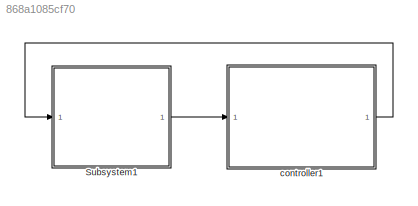
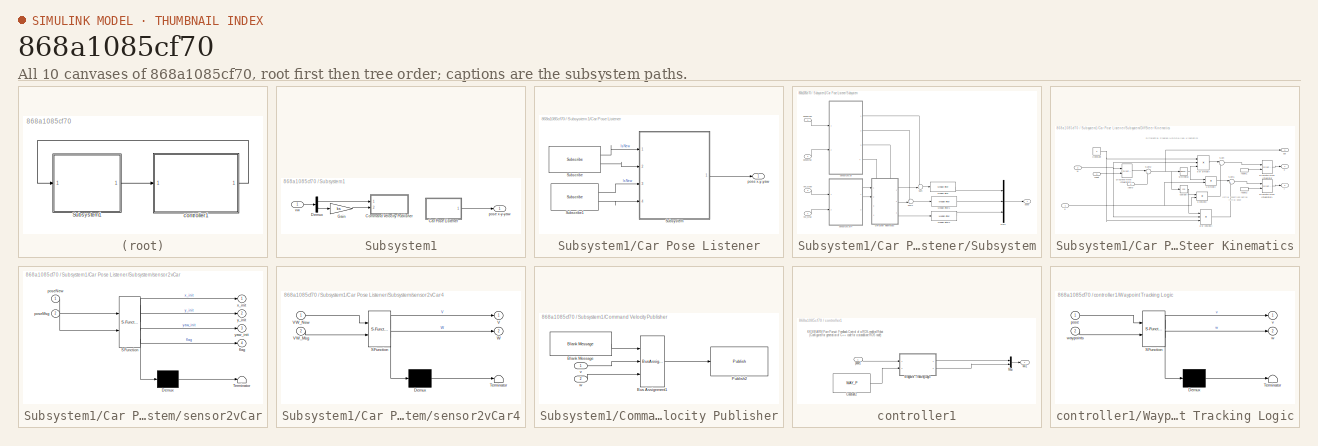
[diagram: thumbnail index - all 10 canvases of the model, root first then tree order]
MODEL slx_868a1085cf70
KIND model
CONFIG AbsTol = auto
CONFIG EnableMultiTasking = on
CONFIG FixedStep = sampleTime
CONFIG InitFcn = sampleTime = 0.05;\nnMedianSize=3;\n% Robot parameters\nwheelRadius = 0.0303; \nrobotRadius = 0.06;   %小车在仿真中显示的圆形的半径大小\nTrackwidth = 0.0847;  %定义向量场直方图算法中小车的宽度\n\n% Lidar parameters\nsensorOffset = [0,0];\nscanAngles = linspace(-pi/2,pi/2,9)';\nmaxRange = 5;\n\n%%%%%%\nks=1;\n\n%初始位置\nx_1_0=1;\ny_1_0=1;\nyaw_1_0=pi/4;\n\nx_2_0=0;\ny_2_0=0.3;\nyaw_2_0=0;\n\nx_3_0=0;\ny_3_0=0.6;\nyaw_3_0=0;\n\nx_4_0=0;\ny_4_0=0.9;\nyaw_4_0=0;\n\n...<+107ch>
CONFIG MaxStep = auto
CONFIG MinStep = auto
CONFIG RelTol = 1e-3
CONFIG SampleTimeConstraint = Unconstrained
CONFIG SolverName = FixedStepDiscrete
CONFIG StartTime = 0.0
CONFIG StopTime = Inf
BLOCK [SubSystem] Subsystem1
  Ports = [1, 1]
  RequestExecContextInheritance = off
BLOCK [SubSystem] Subsystem1/Car Pose Listener
  Ports = [0, 1]
  RequestExecContextInheritance = off
BLOCK [Reference] Subsystem1/Car Pose Listener/Subscribe  REF=robotlib/Subscribe
  Ports = [0, 2]
  SourceBlock = robotlib/Subscribe
  SourceProductBaseCode = RR
  SourceType = ROS Subscribe
BLOCK [Reference] Subsystem1/Car Pose Listener/Subscribe1  REF=robotlib/Subscribe
  Ports = [0, 2]
  SourceBlock = robotlib/Subscribe
  SourceProductBaseCode = RR
  SourceType = ROS Subscribe
BLOCK [SubSystem] Subsystem1/Car Pose Listener/Subsystem
  Ports = [4, 1]
  RequestExecContextInheritance = off
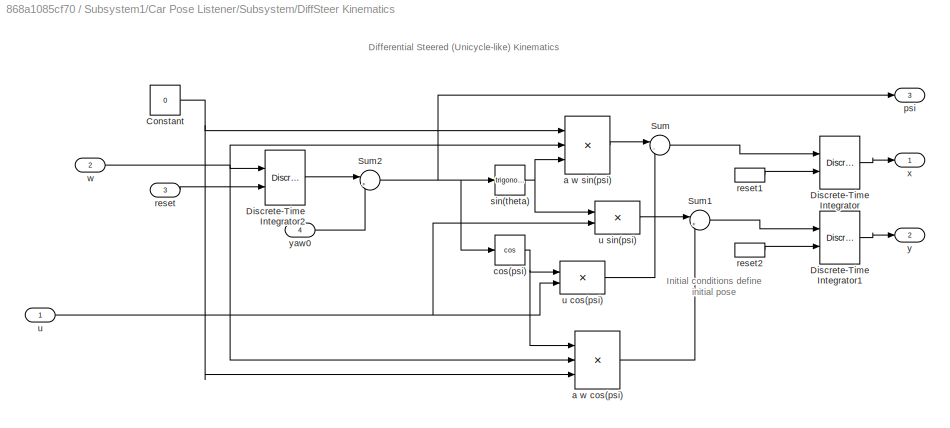
BLOCK [SubSystem] Subsystem1/Car Pose Listener/Subsystem/DiffSteer Kinematics
  PortSchema = {"entries":[{"content":{"sides":[{"content":{"connectorIds":["In1","In2"]},"type":"ConnectorPlacement.EquallySpacedRectSide","uuid":"0032ed68-1de4-4b1c-b237-9372fedc8a7a"},{"content":{"connectorIds":["Out1","Out2","Out3"],"side":"RIGHT"},"type":"ConnectorPlacement.EquallySpacedRectSide","uuid":"d0c861bd-7497-47fe-b183-36da470ee2c6"},{"content":{"connectorIds":["In3","In4"],"side":"TOP"},"type":"Co...<+271ch>
  Ports = [4, 3]
  RequestExecContextInheritance = off
BLOCK [Constant] Subsystem1/Car Pose Listener/Subsystem/DiffSteer Kinematics/Constant
  Value = 0
BLOCK [DiscreteIntegrator] Subsystem1/Car Pose Listener/Subsystem/DiffSteer Kinematics/Discrete-Time Integrator
  ExternalReset = falling
  ICPrevOutput = DiscIntNeverNeededParam
  ICPrevScaledInput = DiscIntNeverNeededParam
  InitialConditionSetting = Auto
  Ports = [2, 1]
  SampleTime = -1
BLOCK [DiscreteIntegrator] Subsystem1/Car Pose Listener/Subsystem/DiffSteer Kinematics/Discrete-Time Integrator1
  ExternalReset = falling
  ICPrevOutput = DiscIntNeverNeededParam
  ICPrevScaledInput = DiscIntNeverNeededParam
  InitialConditionSetting = Auto
  Ports = [2, 1]
  SampleTime = -1
BLOCK [DiscreteIntegrator] Subsystem1/Car Pose Listener/Subsystem/DiffSteer Kinematics/Discrete-Time Integrator2
  ExternalReset = falling
  ICPrevOutput = DiscIntNeverNeededParam
  ICPrevScaledInput = DiscIntNeverNeededParam
  InitialConditionSetting = Auto
  IntegratorMethod = Integration: Backward Euler
  Ports = [2, 1]
  SampleTime = -1
BLOCK [Sum] Subsystem1/Car Pose Listener/Subsystem/DiffSteer Kinematics/Sum
  Inputs = |-+
  Ports = [2, 1]
  SaturateOnIntegerOverflow = on
BLOCK [Sum] Subsystem1/Car Pose Listener/Subsystem/DiffSteer Kinematics/Sum1
  Inputs = |++
  Ports = [2, 1]
  SaturateOnIntegerOverflow = on
BLOCK [Sum] Subsystem1/Car Pose Listener/Subsystem/DiffSteer Kinematics/Sum2
  Inputs = |++
  Ports = [2, 1]
BLOCK [Product] Subsystem1/Car Pose Listener/Subsystem/DiffSteer Kinematics/a w cos(psi)
  Inputs = 3
  OutDataTypeStr = Inherit: Same as first input
  Ports = [3, 1]
  SaturateOnIntegerOverflow = on
BLOCK [Product] Subsystem1/Car Pose Listener/Subsystem/DiffSteer Kinematics/a w sin(psi)
  Inputs = 3
  OutDataTypeStr = Inherit: Same as first input
  Ports = [3, 1]
  SaturateOnIntegerOverflow = on
BLOCK [Trigonometry] Subsystem1/Car Pose Listener/Subsystem/DiffSteer Kinematics/cos(psi)
  Operator = cos
  Ports = [1, 1]
BLOCK [Outport] Subsystem1/Car Pose Listener/Subsystem/DiffSteer Kinematics/psi
  Port = 3
BLOCK [Inport] Subsystem1/Car Pose Listener/Subsystem/DiffSteer Kinematics/reset
  Port = 3
BLOCK [InportShadow] Subsystem1/Car Pose Listener/Subsystem/DiffSteer Kinematics/reset1
  Port = 3
BLOCK [InportShadow] Subsystem1/Car Pose Listener/Subsystem/DiffSteer Kinematics/reset2
  Port = 3
BLOCK [Trigonometry] Subsystem1/Car Pose Listener/Subsystem/DiffSteer Kinematics/sin(theta)
  Ports = [1, 1]
BLOCK [Inport] Subsystem1/Car Pose Listener/Subsystem/DiffSteer Kinematics/u
BLOCK [Product] Subsystem1/Car Pose Listener/Subsystem/DiffSteer Kinematics/u cos(psi)
  OutDataTypeStr = Inherit: Same as first input
  Ports = [2, 1]
  SaturateOnIntegerOverflow = on
BLOCK [Product] Subsystem1/Car Pose Listener/Subsystem/DiffSteer Kinematics/u sin(psi)
  OutDataTypeStr = Inherit: Same as first input
  Ports = [2, 1]
  SaturateOnIntegerOverflow = on
BLOCK [Inport] Subsystem1/Car Pose Listener/Subsystem/DiffSteer Kinematics/w
  Port = 2
BLOCK [Outport] Subsystem1/Car Pose Listener/Subsystem/DiffSteer Kinematics/x
BLOCK [Outport] Subsystem1/Car Pose Listener/Subsystem/DiffSteer Kinematics/y
  Port = 2
BLOCK [Inport] Subsystem1/Car Pose Listener/Subsystem/DiffSteer Kinematics/yaw0
  Port = 4
BLOCK [Reference] Subsystem1/Car Pose Listener/Subsystem/Median Filter  REF=dspstat3/Median
Filter
  Ports = [1, 1]
  SourceBlock = dspstat3/Median\nFilter
  SourceProductBaseCode = DS
  SourceType = dsp.MedianFilter
BLOCK [Reference] Subsystem1/Car Pose Listener/Subsystem/Median Filter1  REF=dspstat3/Median
Filter
  Ports = [1, 1]
  SourceBlock = dspstat3/Median\nFilter
  SourceProductBaseCode = DS
  SourceType = dsp.MedianFilter
BLOCK [Reference] Subsystem1/Car Pose Listener/Subsystem/Median Filter2  REF=dspstat3/Median
Filter
  Ports = [1, 1]
  SourceBlock = dspstat3/Median\nFilter
  SourceProductBaseCode = DS
  SourceType = dsp.MedianFilter
BLOCK [Mux] Subsystem1/Car Pose Listener/Subsystem/Mux7
  DisplayOption = bar
  Inputs = 3
  Ports = [3, 1]
BLOCK [Sum] Subsystem1/Car Pose Listener/Subsystem/Sum
  Inputs = ++|
  Ports = [2, 1]
BLOCK [Sum] Subsystem1/Car Pose Listener/Subsystem/Sum1
  Inputs = ++|
  Ports = [2, 1]
BLOCK [Inport] Subsystem1/Car Pose Listener/Subsystem/VW_Msg
  Port = 4
BLOCK [Inport] Subsystem1/Car Pose Listener/Subsystem/VW_New
  Port = 3
BLOCK [Outport] Subsystem1/Car Pose Listener/Subsystem/pose
BLOCK [Inport] Subsystem1/Car Pose Listener/Subsystem/poseMsg
  Port = 2
BLOCK [Inport] Subsystem1/Car Pose Listener/Subsystem/poseNew
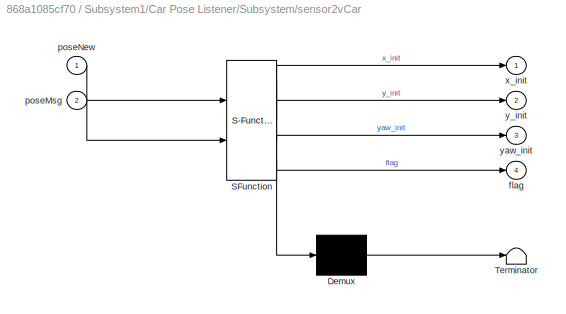
BLOCK [SubSystem] Subsystem1/Car Pose Listener/Subsystem/sensor2vCar
  ErrorFcn = Stateflow.Translate.translate
  PermitHierarchicalResolution = ExplicitOnly
  Ports = [2, 4]
  RequestExecContextInheritance = off
  SFBlockType = MATLAB Function
  TreatAsAtomicUnit = on
BLOCK [Demux] Subsystem1/Car Pose Listener/Subsystem/sensor2vCar/ Demux 
  Outputs = 1
  Ports = [1, 1]
BLOCK [S-Function] Subsystem1/Car Pose Listener/Subsystem/sensor2vCar/ SFunction 
  EnableBusSupport = on
  FunctionName = sf_sfun
  PortCounts = [2 5]
  Ports = [2, 5]
  SFcnIsStateOwnerBlock = off
  SFunctionDeploymentMode = off
  Tag = Stateflow S-Function 12
BLOCK [Terminator] Subsystem1/Car Pose Listener/Subsystem/sensor2vCar/ Terminator 
BLOCK [Outport] Subsystem1/Car Pose Listener/Subsystem/sensor2vCar/flag
  Port = 4
BLOCK [Inport] Subsystem1/Car Pose Listener/Subsystem/sensor2vCar/poseMsg
  Port = 2
BLOCK [Inport] Subsystem1/Car Pose Listener/Subsystem/sensor2vCar/poseNew
BLOCK [Outport] Subsystem1/Car Pose Listener/Subsystem/sensor2vCar/x_init
BLOCK [Outport] Subsystem1/Car Pose Listener/Subsystem/sensor2vCar/y_init
  Port = 2
BLOCK [Outport] Subsystem1/Car Pose Listener/Subsystem/sensor2vCar/yaw_init
  Port = 3
BLOCK [SubSystem] Subsystem1/Car Pose Listener/Subsystem/sensor2vCar4
  ErrorFcn = Stateflow.Translate.translate
  PermitHierarchicalResolution = ExplicitOnly
  Ports = [2, 2]
  RequestExecContextInheritance = off
  SFBlockType = MATLAB Function
  TreatAsAtomicUnit = on
BLOCK [Demux] Subsystem1/Car Pose Listener/Subsystem/sensor2vCar4/ Demux 
  Outputs = 1
  Ports = [1, 1]
BLOCK [S-Function] Subsystem1/Car Pose Listener/Subsystem/sensor2vCar4/ SFunction 
  EnableBusSupport = on
  FunctionName = sf_sfun
  PortCounts = [2 3]
  Ports = [2, 3]
  SFcnIsStateOwnerBlock = off
  SFunctionDeploymentMode = off
  Tag = Stateflow S-Function 13
BLOCK [Terminator] Subsystem1/Car Pose Listener/Subsystem/sensor2vCar4/ Terminator 
BLOCK [Outport] Subsystem1/Car Pose Listener/Subsystem/sensor2vCar4/V
BLOCK [Inport] Subsystem1/Car Pose Listener/Subsystem/sensor2vCar4/VW_Msg
  Port = 2
BLOCK [Inport] Subsystem1/Car Pose Listener/Subsystem/sensor2vCar4/VW_New
BLOCK [Outport] Subsystem1/Car Pose Listener/Subsystem/sensor2vCar4/W
  Port = 2
BLOCK [Outport] Subsystem1/Car Pose Listener/pose x-y-yaw
BLOCK [SubSystem] Subsystem1/Command Velocity Publisher
  Ports = [2]
  RequestExecContextInheritance = off
BLOCK [Reference] Subsystem1/Command Velocity Publisher/Blank Message  REF=robotlib/Blank Message
  Ports = [0, 1]
  SourceBlock = robotlib/Blank Message
  SourceProductBaseCode = RR
  SourceType = ROS Blank Message
BLOCK [BusAssignment] Subsystem1/Command Velocity Publisher/Bus Assignment1
  AssignedSignals = Linear.X,Angular.Z
  DialogController = Simulink.DDGSource_BusAssignment
  Ports = [3, 1]
BLOCK [Reference] Subsystem1/Command Velocity Publisher/Publish2  REF=robotlib/Publish
  AttributesFormatString = %<messageType>
  Ports = [1]
  SourceBlock = robotlib/Publish
  SourceProductBaseCode = RR
  SourceType = ROS Publish
BLOCK [Inport] Subsystem1/Command Velocity Publisher/v
BLOCK [Inport] Subsystem1/Command Velocity Publisher/w
  Port = 2
BLOCK [Demux] Subsystem1/Demux
  Outputs = 2
  Ports = [1, 2]
BLOCK [Gain] Subsystem1/Gain
  Gain = ks
BLOCK [Outport] Subsystem1/pose x-y-yaw
BLOCK [Inport] Subsystem1/vw
BLOCK [SubSystem] controller1
  Ports = [1, 1]
  RequestExecContextInheritance = off
BLOCK [Constant] controller1/Constant2
  Value = WAY_P
BLOCK [Mux] controller1/Mux
  DisplayOption = bar
  Inputs = 2
  Ports = [2, 1]
BLOCK [SubSystem] controller1/Waypoint Tracking Logic
  ErrorFcn = Stateflow.Translate.translate
  PermitHierarchicalResolution = ExplicitOnly
  Ports = [2, 2]
  RequestExecContextInheritance = off
  SFBlockType = Chart
  TreatAsAtomicUnit = on
BLOCK [Demux] controller1/Waypoint Tracking Logic/ Demux 
  Outputs = 1
  Ports = [1, 1]
BLOCK [S-Function] controller1/Waypoint Tracking Logic/ SFunction 
  EnableBusSupport = on
  FunctionName = sf_sfun
  PortCounts = [2 3]
  Ports = [2, 3]
  SFcnIsStateOwnerBlock = off
  SFunctionDeploymentMode = off
  Tag = Stateflow S-Function 3
BLOCK [Terminator] controller1/Waypoint Tracking Logic/ Terminator 
BLOCK [Inport] controller1/Waypoint Tracking Logic/pose
BLOCK [Outport] controller1/Waypoint Tracking Logic/v
  VectorParamsAs1DForOutWhenUnconnected = off
BLOCK [Outport] controller1/Waypoint Tracking Logic/w
  Port = 2
  VectorParamsAs1DForOutWhenUnconnected = off
BLOCK [Inport] controller1/Waypoint Tracking Logic/waypoints
  Port = 2
BLOCK [Inport] controller1/pose1
BLOCK [Outport] controller1/vw1
ANNOTATION Subsystem1/Car Pose Listener/Subsystem/DiffSteer Kinematics: Differential Steered (Unicycle-like) Kinematics
ANNOTATION Subsystem1/Car Pose Listener/Subsystem/DiffSteer Kinematics: Initial conditions define initial pose
ANNOTATION controller1: KKSWARM Pure Pursuit Feedback Control of a ROS-enabled Robot (Configured for generation of C++ code for a standalone ROS node)
LINE Subsystem1/Car Pose Listener/Subscribe1:1 -> Subsystem1/Car Pose Listener/Subsystem:3
LINE Subsystem1/Car Pose Listener/Subscribe1:2 -> Subsystem1/Car Pose Listener/Subsystem:4
LINE Subsystem1/Car Pose Listener/Subscribe:1 -> Subsystem1/Car Pose Listener/Subsystem:1
LINE Subsystem1/Car Pose Listener/Subscribe:2 -> Subsystem1/Car Pose Listener/Subsystem:2
NET Subsystem1/Car Pose Listener/Subsystem/DiffSteer Kinematics/Constant:1 -> Subsystem1/Car Pose Listener/Subsystem/DiffSteer Kinematics/a w cos(psi):3, Subsystem1/Car Pose Listener/Subsystem/DiffSteer Kinematics/a w sin(psi):1
LINE Subsystem1/Car Pose Listener/Subsystem/DiffSteer Kinematics/Discrete-Time Integrator1:1 -> Subsystem1/Car Pose Listener/Subsystem/DiffSteer Kinematics/y:1
LINE Subsystem1/Car Pose Listener/Subsystem/DiffSteer Kinematics/Discrete-Time Integrator2:1 -> Subsystem1/Car Pose Listener/Subsystem/DiffSteer Kinematics/Sum2:1
LINE Subsystem1/Car Pose Listener/Subsystem/DiffSteer Kinematics/Discrete-Time Integrator:1 -> Subsystem1/Car Pose Listener/Subsystem/DiffSteer Kinematics/x:1
LINE Subsystem1/Car Pose Listener/Subsystem/DiffSteer Kinematics/Sum1:1 -> Subsystem1/Car Pose Listener/Subsystem/DiffSteer Kinematics/Discrete-Time Integrator1:1
NET Subsystem1/Car Pose Listener/Subsystem/DiffSteer Kinematics/Sum2:1 -> Subsystem1/Car Pose Listener/Subsystem/DiffSteer Kinematics/cos(psi):1, Subsystem1/Car Pose Listener/Subsystem/DiffSteer Kinematics/psi:1, Subsystem1/Car Pose Listener/Subsystem/DiffSteer Kinematics/sin(theta):1
LINE Subsystem1/Car Pose Listener/Subsystem/DiffSteer Kinematics/Sum:1 -> Subsystem1/Car Pose Listener/Subsystem/DiffSteer Kinematics/Discrete-Time Integrator:1
LINE Subsystem1/Car Pose Listener/Subsystem/DiffSteer Kinematics/a w cos(psi):1 -> Subsystem1/Car Pose Listener/Subsystem/DiffSteer Kinematics/Sum1:2
LINE Subsystem1/Car Pose Listener/Subsystem/DiffSteer Kinematics/a w sin(psi):1 -> Subsystem1/Car Pose Listener/Subsystem/DiffSteer Kinematics/Sum:1
NET Subsystem1/Car Pose Listener/Subsystem/DiffSteer Kinematics/cos(psi):1 -> Subsystem1/Car Pose Listener/Subsystem/DiffSteer Kinematics/a w cos(psi):1, Subsystem1/Car Pose Listener/Subsystem/DiffSteer Kinematics/u cos(psi):1
LINE Subsystem1/Car Pose Listener/Subsystem/DiffSteer Kinematics/reset1:1 -> Subsystem1/Car Pose Listener/Subsystem/DiffSteer Kinematics/Discrete-Time Integrator:2
LINE Subsystem1/Car Pose Listener/Subsystem/DiffSteer Kinematics/reset2:1 -> Subsystem1/Car Pose Listener/Subsystem/DiffSteer Kinematics/Discrete-Time Integrator1:2
LINE Subsystem1/Car Pose Listener/Subsystem/DiffSteer Kinematics/reset:1 -> Subsystem1/Car Pose Listener/Subsystem/DiffSteer Kinematics/Discrete-Time Integrator2:2
NET Subsystem1/Car Pose Listener/Subsystem/DiffSteer Kinematics/sin(theta):1 -> Subsystem1/Car Pose Listener/Subsystem/DiffSteer Kinematics/a w sin(psi):3, Subsystem1/Car Pose Listener/Subsystem/DiffSteer Kinematics/u sin(psi):1
LINE Subsystem1/Car Pose Listener/Subsystem/DiffSteer Kinematics/u cos(psi):1 -> Subsystem1/Car Pose Listener/Subsystem/DiffSteer Kinematics/Sum:2
LINE Subsystem1/Car Pose Listener/Subsystem/DiffSteer Kinematics/u sin(psi):1 -> Subsystem1/Car Pose Listener/Subsystem/DiffSteer Kinematics/Sum1:1
NET Subsystem1/Car Pose Listener/Subsystem/DiffSteer Kinematics/u:1 -> Subsystem1/Car Pose Listener/Subsystem/DiffSteer Kinematics/u cos(psi):2, Subsystem1/Car Pose Listener/Subsystem/DiffSteer Kinematics/u sin(psi):2
NET Subsystem1/Car Pose Listener/Subsystem/DiffSteer Kinematics/w:1 -> Subsystem1/Car Pose Listener/Subsystem/DiffSteer Kinematics/Discrete-Time Integrator2:1, Subsystem1/Car Pose Listener/Subsystem/DiffSteer Kinematics/a w cos(psi):2, Subsystem1/Car Pose Listener/Subsystem/DiffSteer Kinematics/a w sin(psi):2
LINE Subsystem1/Car Pose Listener/Subsystem/DiffSteer Kinematics/yaw0:1 -> Subsystem1/Car Pose Listener/Subsystem/DiffSteer Kinematics/Sum2:2
LINE Subsystem1/Car Pose Listener/Subsystem/DiffSteer Kinematics:1 -> Subsystem1/Car Pose Listener/Subsystem/Sum:2
LINE Subsystem1/Car Pose Listener/Subsystem/DiffSteer Kinematics:2 -> Subsystem1/Car Pose Listener/Subsystem/Sum1:2
LINE Subsystem1/Car Pose Listener/Subsystem/DiffSteer Kinematics:3 -> Subsystem1/Car Pose Listener/Subsystem/Median Filter2:1
LINE Subsystem1/Car Pose Listener/Subsystem/Median Filter1:1 -> Subsystem1/Car Pose Listener/Subsystem/Mux7:2
LINE Subsystem1/Car Pose Listener/Subsystem/Median Filter2:1 -> Subsystem1/Car Pose Listener/Subsystem/Mux7:3
LINE Subsystem1/Car Pose Listener/Subsystem/Median Filter:1 -> Subsystem1/Car Pose Listener/Subsystem/Mux7:1
LINE Subsystem1/Car Pose Listener/Subsystem/Mux7:1 -> Subsystem1/Car Pose Listener/Subsystem/pose:1
LINE Subsystem1/Car Pose Listener/Subsystem/Sum1:1 -> Subsystem1/Car Pose Listener/Subsystem/Median Filter1:1
LINE Subsystem1/Car Pose Listener/Subsystem/Sum:1 -> Subsystem1/Car Pose Listener/Subsystem/Median Filter:1
LINE Subsystem1/Car Pose Listener/Subsystem/VW_Msg:1 -> Subsystem1/Car Pose Listener/Subsystem/sensor2vCar4:2
LINE Subsystem1/Car Pose Listener/Subsystem/VW_New:1 -> Subsystem1/Car Pose Listener/Subsystem/sensor2vCar4:1
LINE Subsystem1/Car Pose Listener/Subsystem/poseMsg:1 -> Subsystem1/Car Pose Listener/Subsystem/sensor2vCar:2
LINE Subsystem1/Car Pose Listener/Subsystem/poseNew:1 -> Subsystem1/Car Pose Listener/Subsystem/sensor2vCar:1
LINE Subsystem1/Car Pose Listener/Subsystem/sensor2vCar4:1 -> Subsystem1/Car Pose Listener/Subsystem/DiffSteer Kinematics:1
LINE Subsystem1/Car Pose Listener/Subsystem/sensor2vCar4:2 -> Subsystem1/Car Pose Listener/Subsystem/DiffSteer Kinematics:2
LINE Subsystem1/Car Pose Listener/Subsystem/sensor2vCar:1 -> Subsystem1/Car Pose Listener/Subsystem/Sum:1
LINE Subsystem1/Car Pose Listener/Subsystem/sensor2vCar:2 -> Subsystem1/Car Pose Listener/Subsystem/Sum1:1
LINE Subsystem1/Car Pose Listener/Subsystem/sensor2vCar:3 -> Subsystem1/Car Pose Listener/Subsystem/DiffSteer Kinematics:4
LINE Subsystem1/Car Pose Listener/Subsystem/sensor2vCar:4 -> Subsystem1/Car Pose Listener/Subsystem/DiffSteer Kinematics:3
LINE Subsystem1/Car Pose Listener/Subsystem:1 -> Subsystem1/Car Pose Listener/pose x-y-yaw:1
LINE Subsystem1/Car Pose Listener:1 -> Subsystem1/pose x-y-yaw:1
LINE Subsystem1/Command Velocity Publisher/Blank Message:1 -> Subsystem1/Command Velocity Publisher/Bus Assignment1:1
LINE Subsystem1/Command Velocity Publisher/Bus Assignment1:1 -> Subsystem1/Command Velocity Publisher/Publish2:1
LINE Subsystem1/Command Velocity Publisher/v:1 -> Subsystem1/Command Velocity Publisher/Bus Assignment1:2
LINE Subsystem1/Command Velocity Publisher/w:1 -> Subsystem1/Command Velocity Publisher/Bus Assignment1:3
LINE Subsystem1/Demux:1 -> Subsystem1/Command Velocity Publisher:1
LINE Subsystem1/Demux:2 -> Subsystem1/Gain:1
LINE Subsystem1/Gain:1 -> Subsystem1/Command Velocity Publisher:2
LINE Subsystem1/vw:1 -> Subsystem1/Demux:1
LINE Subsystem1:1 -> controller1:1
LINE controller1/Constant2:1 -> controller1/Waypoint Tracking Logic:2
LINE controller1/Mux:1 -> controller1/vw1:1
LINE controller1/Waypoint Tracking Logic:1 -> controller1/Mux:1
LINE controller1/Waypoint Tracking Logic:2 -> controller1/Mux:2
LINE controller1/pose1:1 -> controller1/Waypoint Tracking Logic:1
LINE controller1:1 -> Subsystem1:1
note: NET lines group one-source signal fan-out (src -> all destinations, sorted); 1:1 wires keep LINE
CHART controller1/Waypoint Tracking Logic states=3 transitions=11
  STATE_LABEL 'FollowWaypoints\nentry:\ngoalPoint = waypoints(idx,:);\nentry, during:\n[angle,range] = trackGoal(goalPoint);'
  STATE_LABEL '% Set angular speed if\n% angle outside deadband\n[abs(angle) > pi/24]'
  STATE_LABEL '{w = 0;}'
  STATE_LABEL '% Proportional \n% control \n{w = 1.5*angle;}'
  STATE_LABEL 'ReachedGoal\nentry:\nv = 0;\nw = 0.5;'
  STATE_LABEL '[ang,dist] = trackGoal(goal)'
  STATE_LABEL 'SCRIPT:\nfunction [ang,dist] = trackGoal(goal)\n% Finds the angle (theta) and distance (dist) between the \n% vehicle and a goal point\n    \nposDiff = [goal(1)-pose(1);goal(2)-pose(2)];\n\nang = angdiff(pose(3),atan2(posDiff(2),posDiff(1)));\ndist = sqrt(posDiff(1)^2 + posDiff(2)^2);\n'
CHART Subsystem1/Car Pose Listener/Subsystem/sensor2vCar states=1 transitions=1
  STATE_LABEL 'eML_blk_kernel()'
  STATE_LABEL 'SCRIPT:\nfunction [x_init,y_init,yaw_init,flag] = sensor2vCar(poseNew, poseMsg)\npersistent x0 y0 yaw0 yaw1 x0_init y0_init yaw0_init fStart\nif isempty(x0)\n    x0=-10; y0=-10; yaw0=0; yaw1=0;   \n    x0_init=-10;y0_init=-10;yaw0_init=0;\n    fStart=0;\nend\nif poseNew\n    if x0==poseMsg.Pose.Pose.Position.X&&y0==poseMsg.Pose.Pose.Position.Y\n        flag=1;\n    else\n        x0=poseMsg.Pose.Pose.Position....<+678ch>'
CHART Subsystem1/Car Pose Listener/Subsystem/sensor2vCar4 states=1 transitions=1
  STATE_LABEL 'eML_blk_kernel()'
  STATE_LABEL 'SCRIPT:\nfunction [V,W] = sensor2vCar(VW_New, VW_Msg)\npersistent v0 w0\nif isempty(v0)\n    v0=0; \n    w0=0;    \nend\nif VW_New\n    v0=VW_Msg.Linear.X;\n    w0=VW_Msg.Angular.Z;\nend\n\nV=v0;\nW=-w0;\n'
CHART  states=0 transitions=0
CHART  states=0 transitions=0
CHART  states=0 transitions=0
